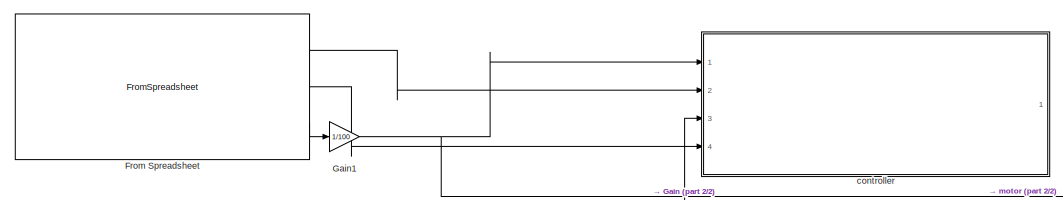
[diagram: root canvas - part 1/2, middle left region]
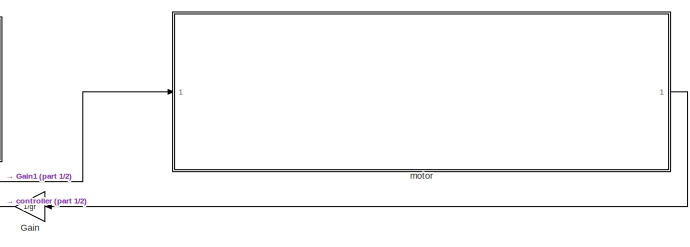
[diagram: root canvas - part 2/2, right side, full height]
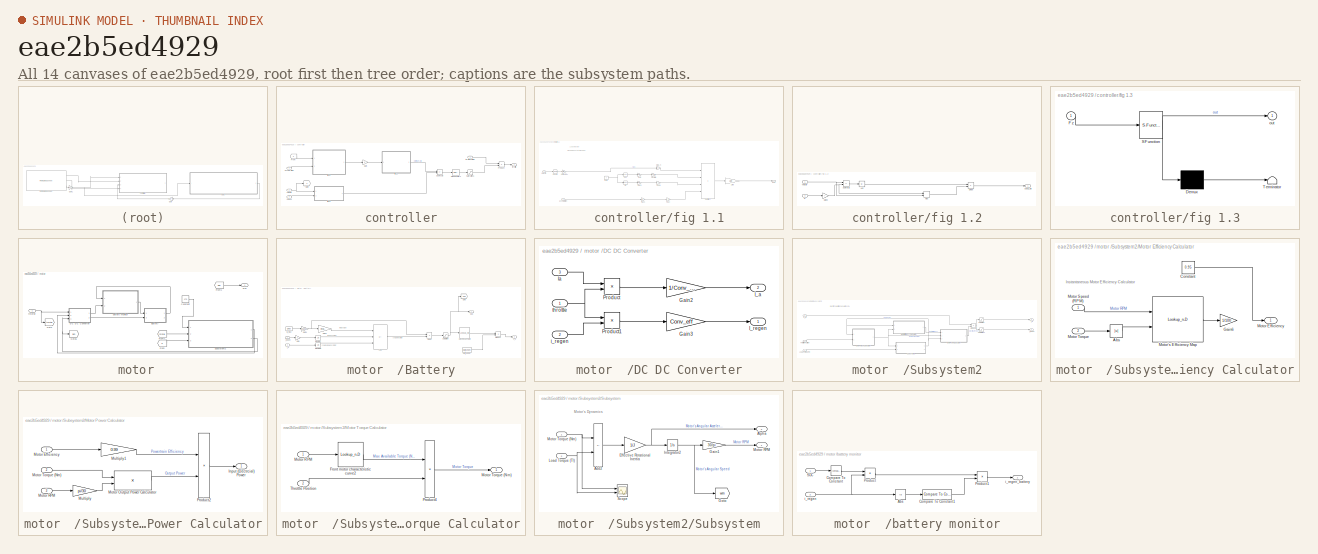
[diagram: thumbnail index - all 14 canvases of the model, root first then tree order]
MODEL slx_eae2b5ed4929
KIND model
CONFIG AbsTol = auto
CONFIG EnableMultiTasking = off
CONFIG FixedStep = auto
CONFIG MaxStep = auto
CONFIG MinStep = auto
CONFIG RelTol = 1e-3
CONFIG SampleTimeConstraint = Unconstrained
CONFIG SolverName = VariableStepAuto
CONFIG StartTime = 0.0
CONFIG StopTime = 48
BLOCK [FromSpreadsheet] From Spreadsheet
  FileName = <userpath>\rms stuff\projects\traction control\optimumlap_simulations\simulation_resultsssss_aaa.csv
  Ports = [0, 3]
  SheetName = simulation_resultsssss_aaa
BLOCK [Gain] Gain
  Gain = 1/gr
BLOCK [Gain] Gain1
  Gain = 1/100
BLOCK [SubSystem] controller
  Ports = [4, 1]
  RequestExecContextInheritance = off
BLOCK [From] controller/From
  GotoTag = v
BLOCK [Gain] controller/Gain
  Gain = .5
BLOCK [Goto] controller/Goto
  GotoTag = v
BLOCK [Reference] controller/PID Controller1  REF=slpidlib/PID Controller
  Ports = [1, 1]
  SourceBlock = slpidlib/PID Controller
  SourceProductBaseCode = SL
  SourceType = PID 1dof
BLOCK [Product] controller/Product
  Ports = [2, 1]
BLOCK [Saturate] controller/Saturation1
  LowerLimit = -1
  UpperLimit = 1
BLOCK [Sum] controller/Subtract3
  IconShape = rectangular
  Inputs = +-
  Ports = [2, 1]
BLOCK [Inport] controller/accelaration
  Port = 4
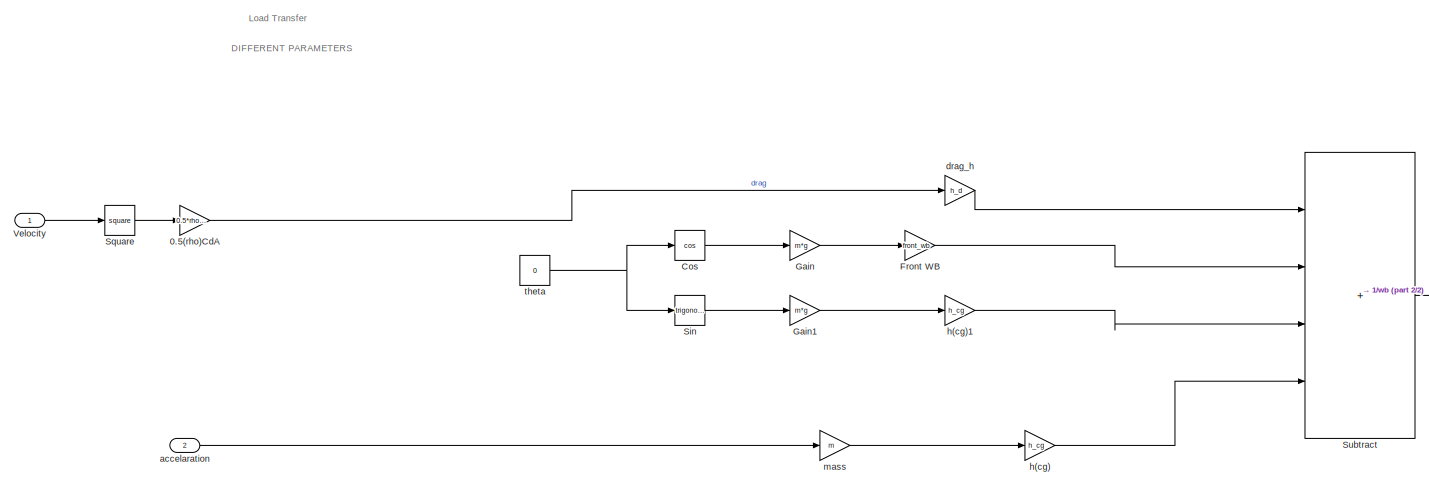
[diagram: controller/fig 1.1 - part 1/2, most of the canvas]
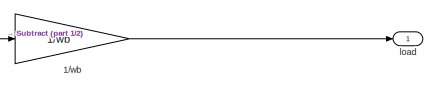
[diagram: controller/fig 1.1 - part 2/2, middle right region]
BLOCK [SubSystem] controller/fig 1.1
  Ports = [2, 1]
  RequestExecContextInheritance = off
BLOCK [Gain] controller/fig 1.1/0.5(rho)CdA
  Gain = 0.5*rho*Cd*A
BLOCK [Gain] controller/fig 1.1/1//wb
  Gain = 1/wb
BLOCK [Trigonometry] controller/fig 1.1/Cos
  Operator = cos
  Ports = [1, 1]
BLOCK [Gain] controller/fig 1.1/Front WB
  Gain = front_wb
BLOCK [Gain] controller/fig 1.1/Gain
  Gain = m*g
BLOCK [Gain] controller/fig 1.1/Gain1
  Gain = m*g
BLOCK [Trigonometry] controller/fig 1.1/Sin
  Ports = [1, 1]
BLOCK [Math] controller/fig 1.1/Square
  Operator = square
  Ports = [1, 1]
BLOCK [Sum] controller/fig 1.1/Subtract
  IconShape = rectangular
  Inputs = ++++
  Ports = [4, 1]
BLOCK [Inport] controller/fig 1.1/Velocity
BLOCK [Inport] controller/fig 1.1/accelaration
  Port = 2
BLOCK [Gain] controller/fig 1.1/drag_h
  Gain = h_d
BLOCK [Gain] controller/fig 1.1/h(cg)
  Gain = h_cg
BLOCK [Gain] controller/fig 1.1/h(cg)1
  Gain = h_cg
BLOCK [Outport] controller/fig 1.1/load
BLOCK [Gain] controller/fig 1.1/mass
  Gain = m
BLOCK [Constant] controller/fig 1.1/theta
  Value = 0
BLOCK [SubSystem] controller/fig 1.2
  Ports = [2, 1]
  RequestExecContextInheritance = off
BLOCK [Abs] controller/fig 1.2/Abs
  SaturateOnIntegerOverflow = off
BLOCK [Product] controller/fig 1.2/Divide
  Inputs = */
  Ports = [2, 1]
BLOCK [Gain] controller/fig 1.2/Gain2
  Gain = r
BLOCK [MinMax] controller/fig 1.2/Max
  Function = max
  Inputs = 2
  Ports = [2, 1]
BLOCK [Sum] controller/fig 1.2/Subtract2
  IconShape = rectangular
  Inputs = +-
  Ports = [2, 1]
BLOCK [Outport] controller/fig 1.2/actual_slip
BLOCK [Inport] controller/fig 1.2/velocity'
BLOCK [Inport] controller/fig 1.2/w
  Port = 2
BLOCK [SubSystem] controller/fig 1.3
  ErrorFcn = Stateflow.Translate.translate
  PermitHierarchicalResolution = ExplicitOnly
  Ports = [1, 1]
  RequestExecContextInheritance = off
  SFBlockType = MATLAB Function
  TreatAsAtomicUnit = on
BLOCK [Demux] controller/fig 1.3/ Demux 
  Outputs = 1
  Ports = [1, 1]
BLOCK [S-Function] controller/fig 1.3/ SFunction 
  EnableBusSupport = on
  FunctionName = sf_sfun
  PortCounts = [1 2]
  Ports = [1, 2]
  SFcnIsStateOwnerBlock = off
  SFunctionDeploymentMode = off
  Tag = Stateflow S-Function 2
BLOCK [Terminator] controller/fig 1.3/ Terminator 
BLOCK [Inport] controller/fig 1.3/Fz
BLOCK [Outport] controller/fig 1.3/out
BLOCK [Inport] controller/omega
  Port = 3
BLOCK [Inport] controller/throtle position
BLOCK [Outport] controller/throttle
BLOCK [Inport] controller/velocity
  Port = 2
BLOCK [SubSystem] motor  
  Ports = [1, 1]
  RequestExecContextInheritance = off
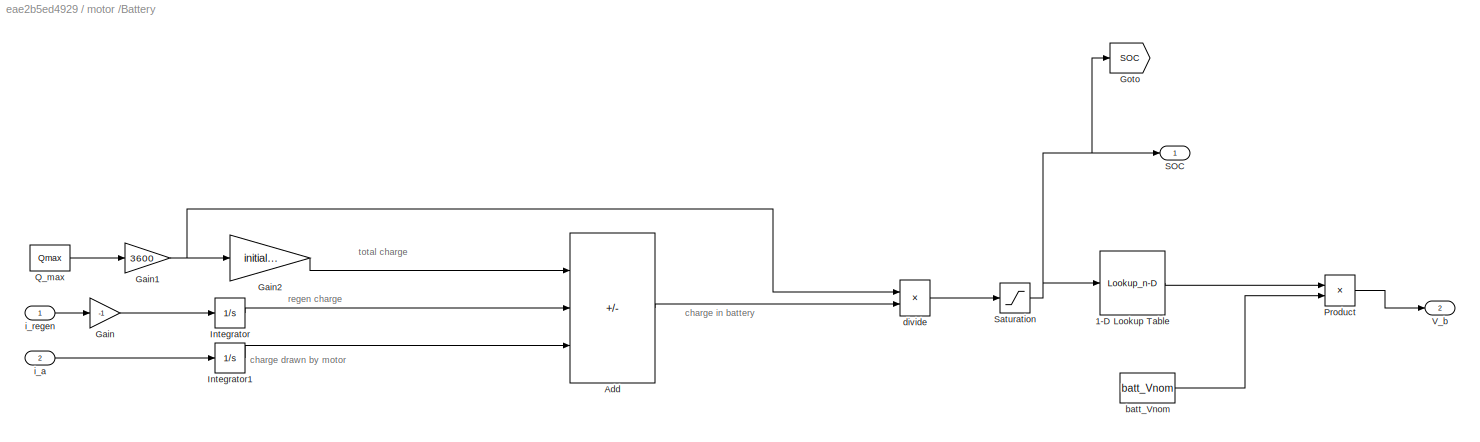
BLOCK [SubSystem] motor  /Battery
  Commented = on
  Ports = [2, 2]
  RequestExecContextInheritance = off
BLOCK [Lookup_n-D] motor  /Battery/1-D Lookup Table
  BreakpointsForDimension1 = SOC
  InputPortMap = u0
  InternalRulePriority = Speed
  NumberOfTableDimensions = 1
  Ports = [1, 1]
  RndMeth = Simplest
  Table = normalized_voltage
BLOCK [Sum] motor  /Battery/Add
  IconShape = rectangular
  Inputs = ++-
  Ports = [3, 1]
BLOCK [Gain] motor  /Battery/Gain
  Gain = -1
BLOCK [Gain] motor  /Battery/Gain1
  Gain = 3600
BLOCK [Gain] motor  /Battery/Gain2
  Gain = initial_SOC
BLOCK [Goto] motor  /Battery/Goto
  GotoTag = SOC
  TagVisibility = global
BLOCK [Integrator] motor  /Battery/Integrator
  Ports = [1, 1]
BLOCK [Integrator] motor  /Battery/Integrator1
  Ports = [1, 1]
BLOCK [Product] motor  /Battery/Product
  Ports = [2, 1]
BLOCK [Constant] motor  /Battery/Q_max
  Value = Qmax
BLOCK [Outport] motor  /Battery/SOC
BLOCK [Saturate] motor  /Battery/Saturation
  LowerLimit = 0
  UpperLimit = 1
BLOCK [Outport] motor  /Battery/V_b
  Port = 2
BLOCK [Constant] motor  /Battery/batt_Vnom
  Value = batt_Vnom
BLOCK [Product] motor  /Battery/divide
  Inputs = /*
  Ports = [2, 1]
BLOCK [Inport] motor  /Battery/i_a
  Port = 2
BLOCK [Inport] motor  /Battery/i_regen
BLOCK [Constant] motor  /Constant
  Value = 470
BLOCK [SubSystem] motor  /DC DC Converter
  Commented = on
  Ports = [3, 2]
  RequestExecContextInheritance = off
BLOCK [Gain] motor  /DC DC Converter/Gain2
  Gain = 1/Conv_eff
BLOCK [Gain] motor  /DC DC Converter/Gain3
  Gain = Conv_eff
BLOCK [Outport] motor  /DC DC Converter/I_a
  Port = 2
BLOCK [Outport] motor  /DC DC Converter/I_regen
BLOCK [Inport] motor  /DC DC Converter/Ia
  Port = 3
BLOCK [Product] motor  /DC DC Converter/Product
  Ports = [2, 1]
BLOCK [Product] motor  /DC DC Converter/Product1
  Ports = [2, 1]
BLOCK [Inport] motor  /DC DC Converter/i_regen
  Port = 2
BLOCK [Inport] motor  /DC DC Converter/throttle
BLOCK [From] motor  /From
  GotoTag = Tl
  TagVisibility = global
BLOCK [From] motor  /From1
  GotoTag = wm
  TagVisibility = global
BLOCK [From] motor  /From2
  GotoTag = throtle
BLOCK [Goto] motor  /Goto
  GotoTag = throtle
BLOCK [Goto] motor  /Goto6
  Commented = on
  GotoTag = iam
  TagVisibility = global
BLOCK [SubSystem] motor  /Subsystem2
  Ports = [3, 2]
  RequestExecContextInheritance = off
BLOCK [Inport] motor  /Subsystem2/Load Torque (Tl)
  Port = 3
BLOCK [SubSystem] motor  /Subsystem2/Motor Efficiency Calculator
  NameLocation = top
  Ports = [2, 1]
  RequestExecContextInheritance = off
BLOCK [Abs] motor  /Subsystem2/Motor Efficiency Calculator/Abs
  Commented = on
  SaturateOnIntegerOverflow = off
BLOCK [Constant] motor  /Subsystem2/Motor Efficiency Calculator/Constant
  Value = 0.95
BLOCK [Gain] motor  /Subsystem2/Motor Efficiency Calculator/Gain6
  Commented = on
  Gain = 1/100
BLOCK [Outport] motor  /Subsystem2/Motor Efficiency Calculator/Motor Efficiency
BLOCK [Inport] motor  /Subsystem2/Motor Efficiency Calculator/Motor Speed (RPM)
BLOCK [Inport] motor  /Subsystem2/Motor Efficiency Calculator/Motor Torque
  Port = 2
BLOCK [Lookup_n-D] motor  /Subsystem2/Motor Efficiency Calculator/Motor's Efficiency Map
  BreakpointsForDimension1 = [10\n195\n398\n600\n795\n994\n1197\n1396\n1598\n1800\n1996\n2188\n2401\n2592\n2795\n2994\n3189\n3217\n3400\n3600\n3800\n4000\n4200\n4400\n4600\n4800\n5000\n5170\n5180]
  BreakpointsForDimension1FirstPoint = 0
  BreakpointsForDimension1Spacing = 500
  BreakpointsForDimension2 = [1:200]
  BreakpointsForDimension2FirstPoint = 0
  BreakpointsForDimension2Spacing = 50
  BreakpointsSpecification = Even spacing
  Commented = on
  InputPortMap = u0,u1
  InternalRulePriority = Speed
  Ports = [2, 1]
  RndMeth = Simplest
  Table = motor_eff
BLOCK [SubSystem] motor  /Subsystem2/Motor Power Calculator
  NameLocation = top
  Ports = [3, 1]
  RequestExecContextInheritance = off
BLOCK [Outport] motor  /Subsystem2/Motor Power Calculator/Input (Electrcial) Power
BLOCK [Inport] motor  /Subsystem2/Motor Power Calculator/Motor Efficiency
BLOCK [Product] motor  /Subsystem2/Motor Power Calculator/Motor Output Power Calculator
  NameLocation = top
  Ports = [2, 1]
BLOCK [Inport] motor  /Subsystem2/Motor Power Calculator/Motor RPM
  Port = 3
BLOCK [Inport] motor  /Subsystem2/Motor Power Calculator/Motor Torque (Nm)
  Port = 2
BLOCK [Gain] motor  /Subsystem2/Motor Power Calculator/Multiply
  Gain = pi/30
BLOCK [Gain] motor  /Subsystem2/Motor Power Calculator/Multiply1
  Gain = 0.99
BLOCK [Product] motor  /Subsystem2/Motor Power Calculator/Product2
  Inputs = /*
  Ports = [2, 1]
BLOCK [SubSystem] motor  /Subsystem2/Motor Torque Calculator
  Ports = [2, 1]
  RequestExecContextInheritance = off
BLOCK [Lookup_n-D] motor  /Subsystem2/Motor Torque Calculator/Front motor characteristic curve2
  BreakpointsForDimension1 = [0 500 1000 1500 2000 2500 3183 3500 4000 4500 5000 5500 6000 6500 7000]
  InputPortMap = u0
  InternalRulePriority = Speed
  NumberOfTableDimensions = 1
  Ports = [1, 1]
  RndMeth = Simplest
  Table = [240 240 240 240 240 240 240 218.23 190.98 169.76 152.78 138.89 127.32 117.52 109.13]
BLOCK [Inport] motor  /Subsystem2/Motor Torque Calculator/Motor RPM
BLOCK [Outport] motor  /Subsystem2/Motor Torque Calculator/Motor Torque (Nm)
BLOCK [Product] motor  /Subsystem2/Motor Torque Calculator/Product4
  Ports = [2, 1]
BLOCK [Inport] motor  /Subsystem2/Motor Torque Calculator/Throttle Position
  Port = 2
BLOCK [Product] motor  /Subsystem2/Product3
  Inputs = /*
  Ports = [2, 1]
BLOCK [Saturate] motor  /Subsystem2/Saturation
  LowerLimit = 0
  UpperLimit = inf
BLOCK [Saturate] motor  /Subsystem2/Saturation1
  LowerLimit = -inf
  UpperLimit = 0
BLOCK [SubSystem] motor  /Subsystem2/Subsystem
  Ports = [2, 2]
  RequestExecContextInheritance = off
BLOCK [Sum] motor  /Subsystem2/Subsystem/Add2
  IconShape = rectangular
  Inputs = +-
  Ports = [2, 1]
BLOCK [Outport] motor  /Subsystem2/Subsystem/Alpha
  Port = 2
BLOCK [Gain] motor  /Subsystem2/Subsystem/Effective Rotational Inertia
  Gain = 1/J
BLOCK [Gain] motor  /Subsystem2/Subsystem/Gain1
  Gain = 30/pi
BLOCK [Goto] motor  /Subsystem2/Subsystem/Goto
  GotoTag = wm
  TagVisibility = global
BLOCK [Integrator] motor  /Subsystem2/Subsystem/Integrator2
  InitialCondition = 390
  Ports = [1, 1]
BLOCK [Inport] motor  /Subsystem2/Subsystem/Load Torque (Tl)
  Port = 2
BLOCK [Outport] motor  /Subsystem2/Subsystem/Motor RPM
BLOCK [Inport] motor  /Subsystem2/Subsystem/Motor Torque (Nm)
BLOCK [Scope] motor  /Subsystem2/Subsystem/Scope
  Floating = off
  NumInputPorts = 2
  Ports = [2]
  ScopeSpecificationString = Simulink.scopes.TimeScopeBlockCfg('CurrentConfiguration', extmgr.ConfigurationSet(extmgr.Configuration('Core','General UI',true),extmgr.Configuration('Core','Source UI',true),extmgr.Configuration('Sources','WiredSimulink',true,'DataLoggingVariableName','ScopeData7'),extmgr.Configuration('Visuals','Time Domain',true,'SerializedDisplays',{struct('MinYLimReal','-44.18535','MaxYLimReal','397.66813','Y...<+1405ch>
BLOCK [Inport] motor  /Subsystem2/Throttle Position
  Port = 2
BLOCK [Inport] motor  /Subsystem2/V_b
BLOCK [Outport] motor  /Subsystem2/i_a
  Port = 2
BLOCK [Outport] motor  /Subsystem2/i_regen
BLOCK [SubSystem] motor  /battery monitor
  Commented = on
  Ports = [2, 1]
  RequestExecContextInheritance = off
BLOCK [Abs] motor  /battery monitor/Abs
  SaturateOnIntegerOverflow = off
BLOCK [Reference] motor  /battery monitor/Compare To Constant  REF=simulink/Logic and Bit
Operations/Compare
To Constant
  Ports = [1, 1]
  SourceBlock = simulink/Logic and Bit\nOperations/Compare\nTo Constant
  SourceProductBaseCode = SL
  SourceType = Compare To Constant
BLOCK [Reference] motor  /battery monitor/Compare To Constant1  REF=simulink/Logic and Bit
Operations/Compare
To Constant
  Ports = [1, 1]
  SourceBlock = simulink/Logic and Bit\nOperations/Compare\nTo Constant
  SourceProductBaseCode = SL
  SourceType = Compare To Constant
BLOCK [Product] motor  /battery monitor/Product
  Ports = [2, 1]
BLOCK [Product] motor  /battery monitor/Product1
  Ports = [2, 1]
BLOCK [Inport] motor  /battery monitor/SOC
BLOCK [Inport] motor  /battery monitor/i_regen
  Port = 2
BLOCK [Outport] motor  /battery monitor/i_regen_battery
BLOCK [Inport] motor  /throttle
BLOCK [Outport] motor  /wm
ANNOTATION controller/fig 1.1: DIFFERENT PARAMETERS
ANNOTATION controller/fig 1.1: Load Transfer
ANNOTATION motor  /Battery: charge drawn by motor
ANNOTATION motor  /Battery: charge in battery
ANNOTATION motor  /Battery: regen charge
ANNOTATION motor  /Battery: total charge
ANNOTATION motor  /Subsystem2: Electric Powertrain Calculations RL
ANNOTATION motor  /Subsystem2/Motor Efficiency Calculator: Instantaneous Motor Efficiency Calculator
ANNOTATION motor  /Subsystem2/Subsystem: Motor's Dynamics
LINE From Spreadsheet:1 -> controller:2
LINE From Spreadsheet:2 -> controller:4
LINE From Spreadsheet:3 -> Gain1:1
NET Gain1:1 -> controller:1, motor  :1
LINE Gain:1 -> controller:3
LINE controller/From:1 -> controller/fig 1.1:1
LINE controller/Gain:1 -> controller/fig 1.3:1
LINE controller/PID Controller1:1 -> controller/Saturation1:1
LINE controller/Product:1 -> controller/throttle:1
LINE controller/Saturation1:1 -> controller/Product:2
LINE controller/Subtract3:1 -> controller/PID Controller1:1
LINE controller/accelaration:1 -> controller/fig 1.1:2
LINE controller/fig 1.1/0.5(rho)CdA:1 -> controller/fig 1.1/drag_h:1
LINE controller/fig 1.1/1//wb:1 -> controller/fig 1.1/load:1
LINE controller/fig 1.1/Cos:1 -> controller/fig 1.1/Gain:1
LINE controller/fig 1.1/Front WB:1 -> controller/fig 1.1/Subtract:2
LINE controller/fig 1.1/Gain1:1 -> controller/fig 1.1/h(cg)1:1
LINE controller/fig 1.1/Gain:1 -> controller/fig 1.1/Front WB:1
LINE controller/fig 1.1/Sin:1 -> controller/fig 1.1/Gain1:1
LINE controller/fig 1.1/Square:1 -> controller/fig 1.1/0.5(rho)CdA:1
LINE controller/fig 1.1/Subtract:1 -> controller/fig 1.1/1//wb:1
LINE controller/fig 1.1/Velocity:1 -> controller/fig 1.1/Square:1
LINE controller/fig 1.1/accelaration:1 -> controller/fig 1.1/mass:1
LINE controller/fig 1.1/drag_h:1 -> controller/fig 1.1/Subtract:1
LINE controller/fig 1.1/h(cg)1:1 -> controller/fig 1.1/Subtract:3
LINE controller/fig 1.1/h(cg):1 -> controller/fig 1.1/Subtract:4
LINE controller/fig 1.1/mass:1 -> controller/fig 1.1/h(cg):1
NET controller/fig 1.1/theta:1 -> controller/fig 1.1/Cos:1, controller/fig 1.1/Sin:1
LINE controller/fig 1.1:1 -> controller/Gain:1
LINE controller/fig 1.2/Abs:1 -> controller/fig 1.2/Divide:1
LINE controller/fig 1.2/Divide:1 -> controller/fig 1.2/actual_slip:1
NET controller/fig 1.2/Gain2:1 -> controller/fig 1.2/Max:1, controller/fig 1.2/Subtract2:2
LINE controller/fig 1.2/Max:1 -> controller/fig 1.2/Divide:2
LINE controller/fig 1.2/Subtract2:1 -> controller/fig 1.2/Abs:1
NET controller/fig 1.2/velocity':1 -> controller/fig 1.2/Max:2, controller/fig 1.2/Subtract2:1
LINE controller/fig 1.2/w:1 -> controller/fig 1.2/Gain2:1
LINE controller/fig 1.2:1 -> controller/Subtract3:2
LINE controller/fig 1.3:1 -> controller/Subtract3:1
LINE controller/omega:1 -> controller/fig 1.2:2
LINE controller/throtle position:1 -> controller/Product:1
NET controller/velocity:1 -> controller/Goto:1, controller/fig 1.2:1
LINE motor  /Battery/1-D Lookup Table:1 -> motor  /Battery/Product:1
LINE motor  /Battery/Add:1 -> motor  /Battery/divide:2
NET motor  /Battery/Gain1:1 -> motor  /Battery/Gain2:1, motor  /Battery/divide:1
LINE motor  /Battery/Gain2:1 -> motor  /Battery/Add:1
LINE motor  /Battery/Gain:1 -> motor  /Battery/Integrator:1
LINE motor  /Battery/Integrator1:1 -> motor  /Battery/Add:3
LINE motor  /Battery/Integrator:1 -> motor  /Battery/Add:2
LINE motor  /Battery/Product:1 -> motor  /Battery/V_b:1
LINE motor  /Battery/Q_max:1 -> motor  /Battery/Gain1:1
NET motor  /Battery/Saturation:1 -> motor  /Battery/1-D Lookup Table:1, motor  /Battery/Goto:1, motor  /Battery/SOC:1
LINE motor  /Battery/batt_Vnom:1 -> motor  /Battery/Product:2
LINE motor  /Battery/divide:1 -> motor  /Battery/Saturation:1
LINE motor  /Battery/i_a:1 -> motor  /Battery/Integrator1:1
LINE motor  /Battery/i_regen:1 -> motor  /Battery/Gain:1
LINE motor  /Battery:1 -> motor  /battery monitor:1
LINE motor  /Constant:1 -> motor  /Subsystem2:1
LINE motor  /DC DC Converter/Gain2:1 -> motor  /DC DC Converter/I_a:1
LINE motor  /DC DC Converter/Gain3:1 -> motor  /DC DC Converter/I_regen:1
LINE motor  /DC DC Converter/Ia:1 -> motor  /DC DC Converter/Product:1
LINE motor  /DC DC Converter/Product1:1 -> motor  /DC DC Converter/Gain3:1
LINE motor  /DC DC Converter/Product:1 -> motor  /DC DC Converter/Gain2:1
LINE motor  /DC DC Converter/i_regen:1 -> motor  /DC DC Converter/Product1:2
NET motor  /DC DC Converter/throttle:1 -> motor  /DC DC Converter/Product1:1, motor  /DC DC Converter/Product:2
LINE motor  /DC DC Converter:1 -> motor  /battery monitor:2
LINE motor  /DC DC Converter:2 -> motor  /Battery:2
LINE motor  /From1:1 -> motor  /wm:1
LINE motor  /From2:1 -> motor  /Subsystem2:2
LINE motor  /From:1 -> motor  /Subsystem2:3
LINE motor  /Subsystem2/Load Torque (Tl):1 -> motor  /Subsystem2/Subsystem:2
LINE motor  /Subsystem2/Motor Efficiency Calculator/Abs:1 -> motor  /Subsystem2/Motor Efficiency Calculator/Motor's Efficiency Map:2
LINE motor  /Subsystem2/Motor Efficiency Calculator/Constant:1 -> motor  /Subsystem2/Motor Efficiency Calculator/Motor Efficiency:1
LINE motor  /Subsystem2/Motor Efficiency Calculator/Motor Speed (RPM):1 -> motor  /Subsystem2/Motor Efficiency Calculator/Motor's Efficiency Map:1
LINE motor  /Subsystem2/Motor Efficiency Calculator/Motor Torque:1 -> motor  /Subsystem2/Motor Efficiency Calculator/Abs:1
LINE motor  /Subsystem2/Motor Efficiency Calculator/Motor's Efficiency Map:1 -> motor  /Subsystem2/Motor Efficiency Calculator/Gain6:1
LINE motor  /Subsystem2/Motor Efficiency Calculator:1 -> motor  /Subsystem2/Motor Power Calculator:1
LINE motor  /Subsystem2/Motor Power Calculator/Motor Efficiency:1 -> motor  /Subsystem2/Motor Power Calculator/Multiply1:1
LINE motor  /Subsystem2/Motor Power Calculator/Motor Output Power Calculator:1 -> motor  /Subsystem2/Motor Power Calculator/Product2:2
LINE motor  /Subsystem2/Motor Power Calculator/Motor RPM:1 -> motor  /Subsystem2/Motor Power Calculator/Multiply:1
LINE motor  /Subsystem2/Motor Power Calculator/Motor Torque (Nm):1 -> motor  /Subsystem2/Motor Power Calculator/Motor Output Power Calculator:1
LINE motor  /Subsystem2/Motor Power Calculator/Multiply1:1 -> motor  /Subsystem2/Motor Power Calculator/Product2:1
LINE motor  /Subsystem2/Motor Power Calculator/Multiply:1 -> motor  /Subsystem2/Motor Power Calculator/Motor Output Power Calculator:2
LINE motor  /Subsystem2/Motor Power Calculator/Product2:1 -> motor  /Subsystem2/Motor Power Calculator/Input (Electrcial) Power:1
LINE motor  /Subsystem2/Motor Power Calculator:1 -> motor  /Subsystem2/Product3:2
LINE motor  /Subsystem2/Motor Torque Calculator/Front motor characteristic curve2:1 -> motor  /Subsystem2/Motor Torque Calculator/Product4:1
LINE motor  /Subsystem2/Motor Torque Calculator/Motor RPM:1 -> motor  /Subsystem2/Motor Torque Calculator/Front motor characteristic curve2:1
LINE motor  /Subsystem2/Motor Torque Calculator/Product4:1 -> motor  /Subsystem2/Motor Torque Calculator/Motor Torque (Nm):1
LINE motor  /Subsystem2/Motor Torque Calculator/Throttle Position:1 -> motor  /Subsystem2/Motor Torque Calculator/Product4:2
NET motor  /Subsystem2/Motor Torque Calculator:1 -> motor  /Subsystem2/Motor Efficiency Calculator:2, motor  /Subsystem2/Motor Power Calculator:2, motor  /Subsystem2/Subsystem:1
NET motor  /Subsystem2/Product3:1 -> motor  /Subsystem2/Saturation1:1, motor  /Subsystem2/Saturation:1
LINE motor  /Subsystem2/Saturation1:1 -> motor  /Subsystem2/i_regen:1
LINE motor  /Subsystem2/Saturation:1 -> motor  /Subsystem2/i_a:1
LINE motor  /Subsystem2/Subsystem/Add2:1 -> motor  /Subsystem2/Subsystem/Effective Rotational Inertia:1
NET motor  /Subsystem2/Subsystem/Effective Rotational Inertia:1 -> motor  /Subsystem2/Subsystem/Alpha:1, motor  /Subsystem2/Subsystem/Integrator2:1
LINE motor  /Subsystem2/Subsystem/Gain1:1 -> motor  /Subsystem2/Subsystem/Motor RPM:1
NET motor  /Subsystem2/Subsystem/Integrator2:1 -> motor  /Subsystem2/Subsystem/Gain1:1, motor  /Subsystem2/Subsystem/Goto:1
NET motor  /Subsystem2/Subsystem/Load Torque (Tl):1 -> motor  /Subsystem2/Subsystem/Add2:2, motor  /Subsystem2/Subsystem/Scope:2
NET motor  /Subsystem2/Subsystem/Motor Torque (Nm):1 -> motor  /Subsystem2/Subsystem/Add2:1, motor  /Subsystem2/Subsystem/Scope:1
NET motor  /Subsystem2/Subsystem:1 -> motor  /Subsystem2/Motor Efficiency Calculator:1, motor  /Subsystem2/Motor Power Calculator:3, motor  /Subsystem2/Motor Torque Calculator:1
LINE motor  /Subsystem2/Throttle Position:1 -> motor  /Subsystem2/Motor Torque Calculator:2
LINE motor  /Subsystem2/V_b:1 -> motor  /Subsystem2/Product3:1
LINE motor  /Subsystem2:1 -> motor  /DC DC Converter:2
NET motor  /Subsystem2:2 -> motor  /DC DC Converter:3, motor  /Goto6:1
LINE motor  /battery monitor/Abs:1 -> motor  /battery monitor/Compare To Constant1:1
LINE motor  /battery monitor/Compare To Constant1:1 -> motor  /battery monitor/Product1:2
LINE motor  /battery monitor/Compare To Constant:1 -> motor  /battery monitor/Product:1
LINE motor  /battery monitor/Product1:1 -> motor  /battery monitor/i_regen_battery:1
LINE motor  /battery monitor/Product:1 -> motor  /battery monitor/Product1:1
LINE motor  /battery monitor/SOC:1 -> motor  /battery monitor/Compare To Constant:1
NET motor  /battery monitor/i_regen:1 -> motor  /battery monitor/Abs:1, motor  /battery monitor/Product:2
LINE motor  /battery monitor:1 -> motor  /Battery:1
NET motor  /throttle:1 -> motor  /DC DC Converter:1, motor  /Goto:1
LINE motor  :1 -> Gain:1
note: NET lines group one-source signal fan-out (src -> all destinations, sorted); 1:1 wires keep LINE
CHART controller/fig 1.3 states=1 transitions=1
  STATE_LABEL 'eML_blk_kernel()'
  STATE_LABEL 'SCRIPT:\nfunction out  =packeja(Fz)\n    \n    a1=-2.13*(10^-5);\n    a2=1.144;\n    a3=4.96*(10^-5);\n    a4=.226;\n    a5=6.9*(10^-5);\n    a6=-6*(10^-9);\n    a7=5.6*(10*(-5));\n    a8=.486;\n    \n    lambda=0:.005:1;\n    Cx=1.65;\n    Dx=a1*Fz*Fz+a2*Fz;\n    func1=(a3*Fz*Fz+a4*Fz)*exp(-a5*Fz);\n    Bx=func1/(Cx*Dx);\n    Ex=a6*Fz*Fz+a7*Fz+a8;\n    G=Bx*lambda;\n    func2=G*(1-Ex)+Ex*atan(G);\n    Fx=Dx*sin(Cx*a...<+93ch>'
CHART  states=0 transitions=0
